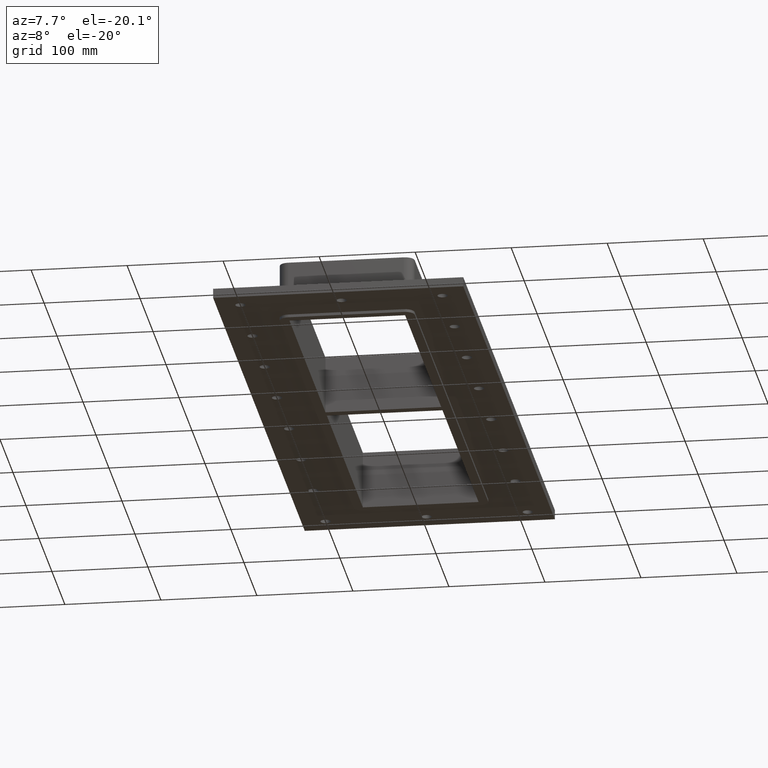
[diagram: clean part render]
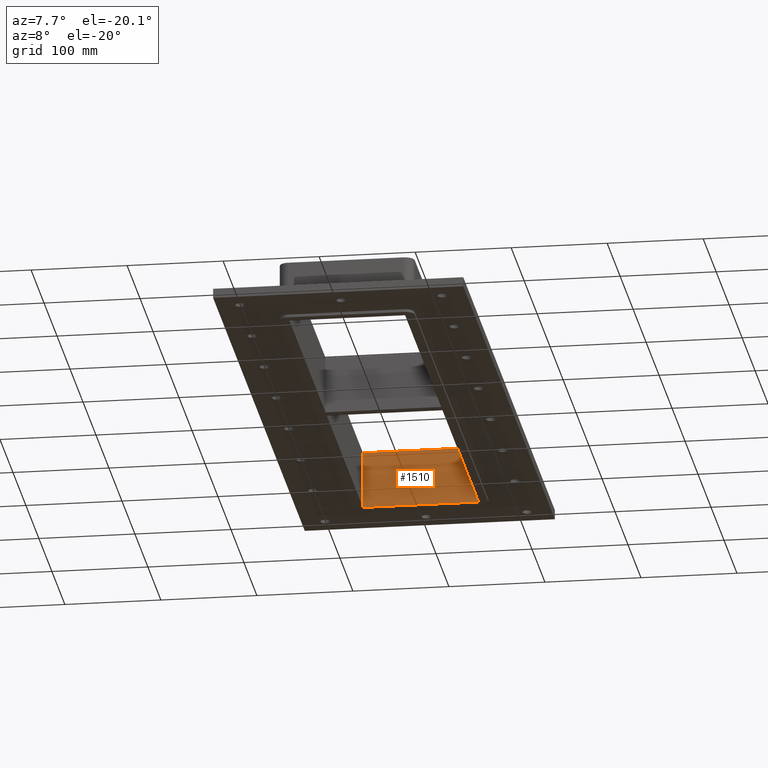
[diagram: same view with one face highlighted and labeled with its STEP entity id]
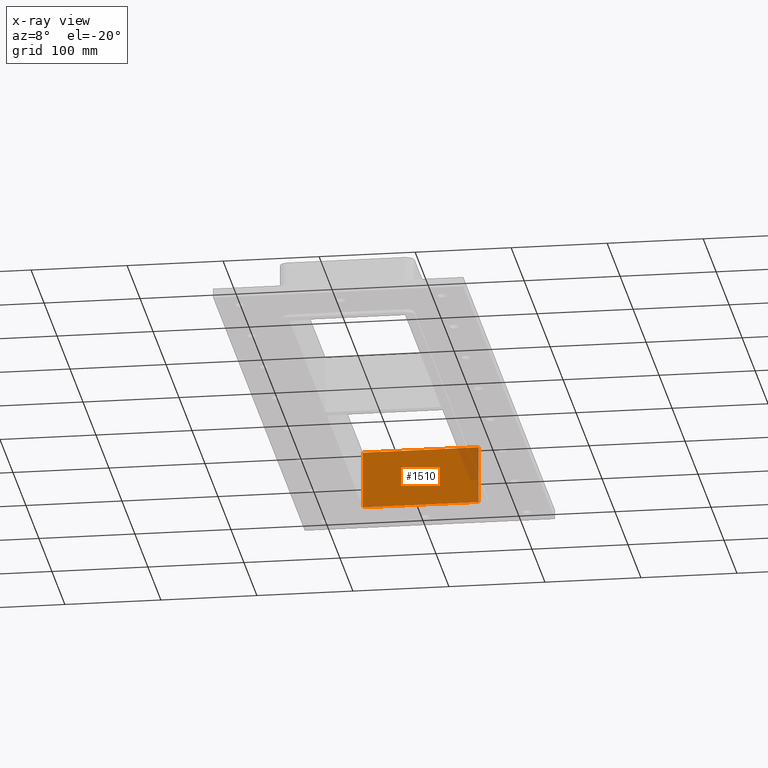
[diagram: x-ray of the same camera — body ghosted, the highlighted face saturated]
A machine part, auxiliary view. The second image highlights one B-rep face of the part: STEP entity #1510.
The next image is the same camera in x-ray: the body ghosted, the highlighted face saturated — about 8% of this face is hidden behind the body in this view.
In plain terms, the highlighted planar face has unit normal (0, 1, 0).
Its self-contained STEP definition (entity closure, byte-faithful):
#1238=CARTESIAN_POINT('',(-60.250000000000021,283.00000000000023,-30.0));
#1239=VERTEX_POINT('',#1238);
#1256=CARTESIAN_POINT('',(60.250000000000092,283.00000000000023,-30.0));
#1257=VERTEX_POINT('',#1256);
#1264=CARTESIAN_POINT('',(60.250000000000092,283.00000000000023,-30.0));
#1265=DIRECTION('',(-1.0,0.0,0.0));
#1266=VECTOR('',#1265,120.50000000000011);
#1267=LINE('',#1264,#1266);
#1268=EDGE_CURVE('',#1257,#1239,#1267,.T.);
#1421=CARTESIAN_POINT('',(-60.250000000000021,283.00000000000023,30.0));
#1422=VERTEX_POINT('',#1421);
#1423=CARTESIAN_POINT('',(-60.250000000000021,283.00000000000023,30.0));
#1424=DIRECTION('',(0.0,0.0,-1.0));
#1425=VECTOR('',#1424,60.0);
#1426=LINE('',#1423,#1425);
#1427=EDGE_CURVE('',#1422,#1239,#1426,.T.);
#1477=CARTESIAN_POINT('',(60.250000000000092,283.00000000000023,30.0));
#1478=VERTEX_POINT('',#1477);
#1485=CARTESIAN_POINT('',(60.250000000000092,283.00000000000023,30.0));
#1486=DIRECTION('',(0.0,0.0,-1.0));
#1487=VECTOR('',#1486,60.0);
#1488=LINE('',#1485,#1487);
#1489=EDGE_CURVE('',#1478,#1257,#1488,.T.);
#1494=CARTESIAN_POINT('',(-60.250000000000021,283.00000000000023,30.0));
#1495=DIRECTION('',(0.0,1.0,0.0));
#1496=DIRECTION('',(1.0,0.0,0.0));
#1497=AXIS2_PLACEMENT_3D('',#1494,#1495,#1496);
#1498=PLANE('',#1497);
#1499=ORIENTED_EDGE('',*,*,#1268,.F.);
#1500=ORIENTED_EDGE('',*,*,#1489,.F.);
#1501=CARTESIAN_POINT('',(-60.250000000000021,283.00000000000023,30.0));
#1502=DIRECTION('',(1.0,0.0,0.0));
#1503=VECTOR('',#1502,120.50000000000011);
#1504=LINE('',#1501,#1503);
#1505=EDGE_CURVE('',#1422,#1478,#1504,.T.);
#1506=ORIENTED_EDGE('',*,*,#1505,.F.);
#1507=ORIENTED_EDGE('',*,*,#1427,.T.);
#1508=EDGE_LOOP('',(#1499,#1500,#1506,#1507));
#1509=FACE_OUTER_BOUND('',#1508,.T.);
#1510=ADVANCED_FACE('',(#1509),#1498,.F.);